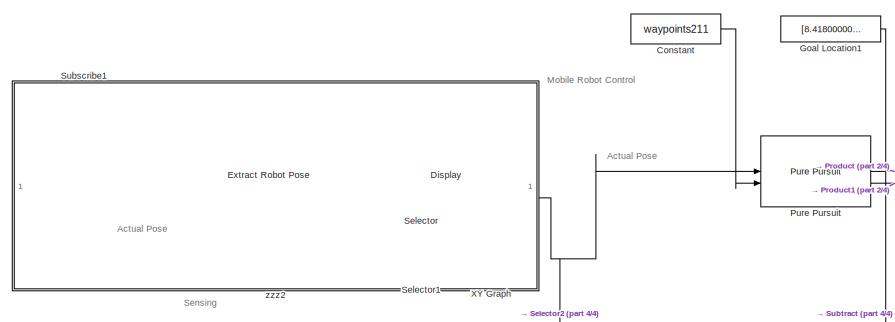
[diagram: root canvas - part 1/4, top center region]
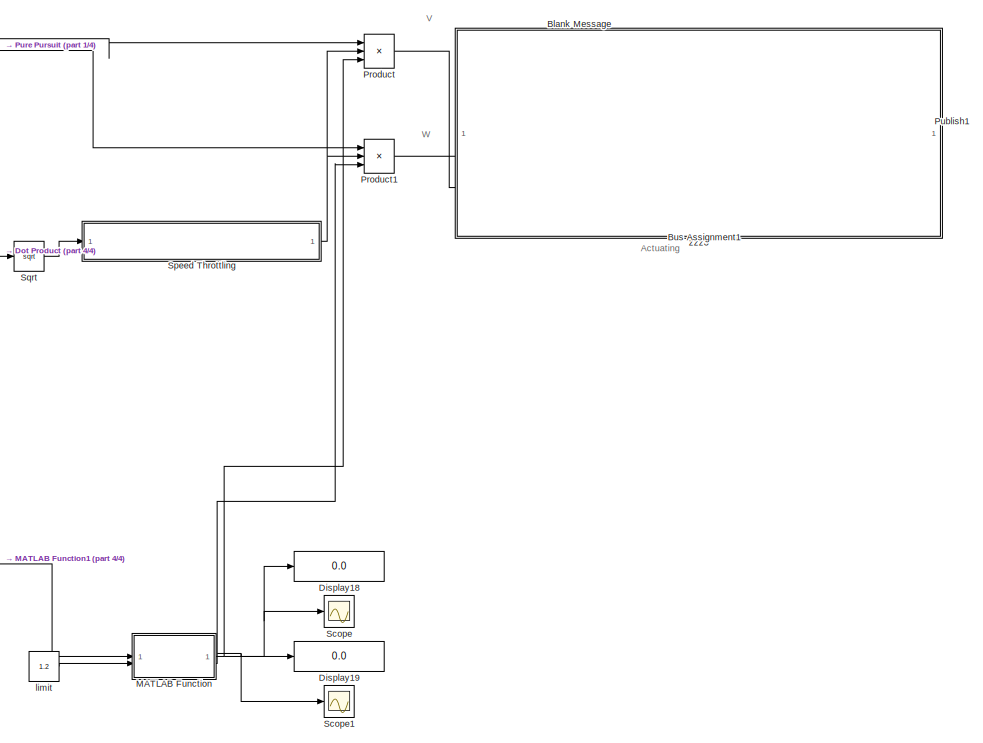
[diagram: root canvas - part 2/4, middle right region]
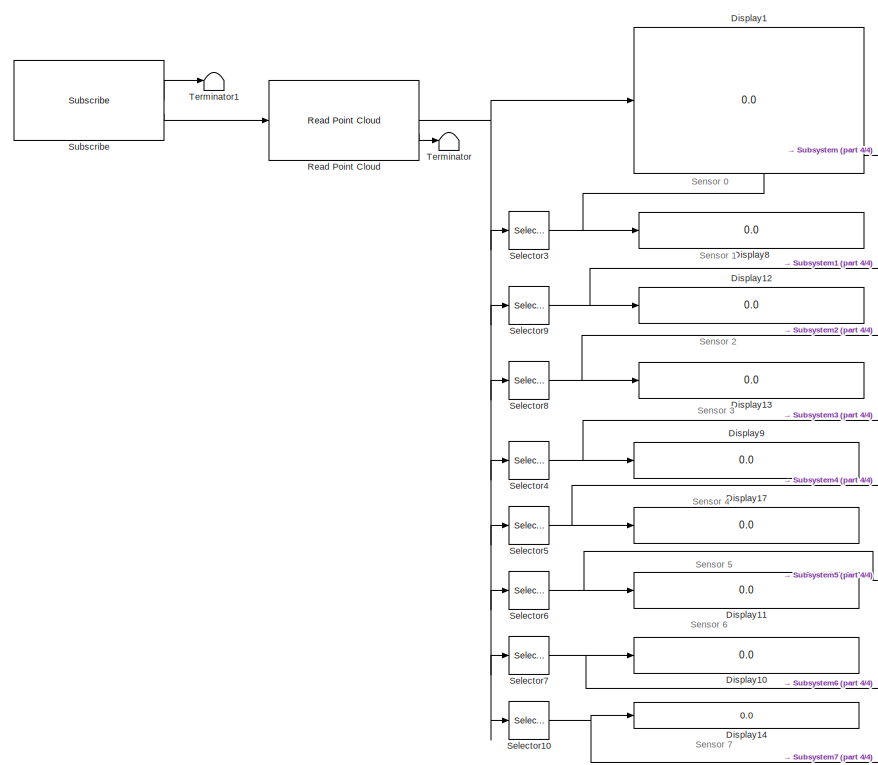
[diagram: root canvas - part 3/4, middle left region]
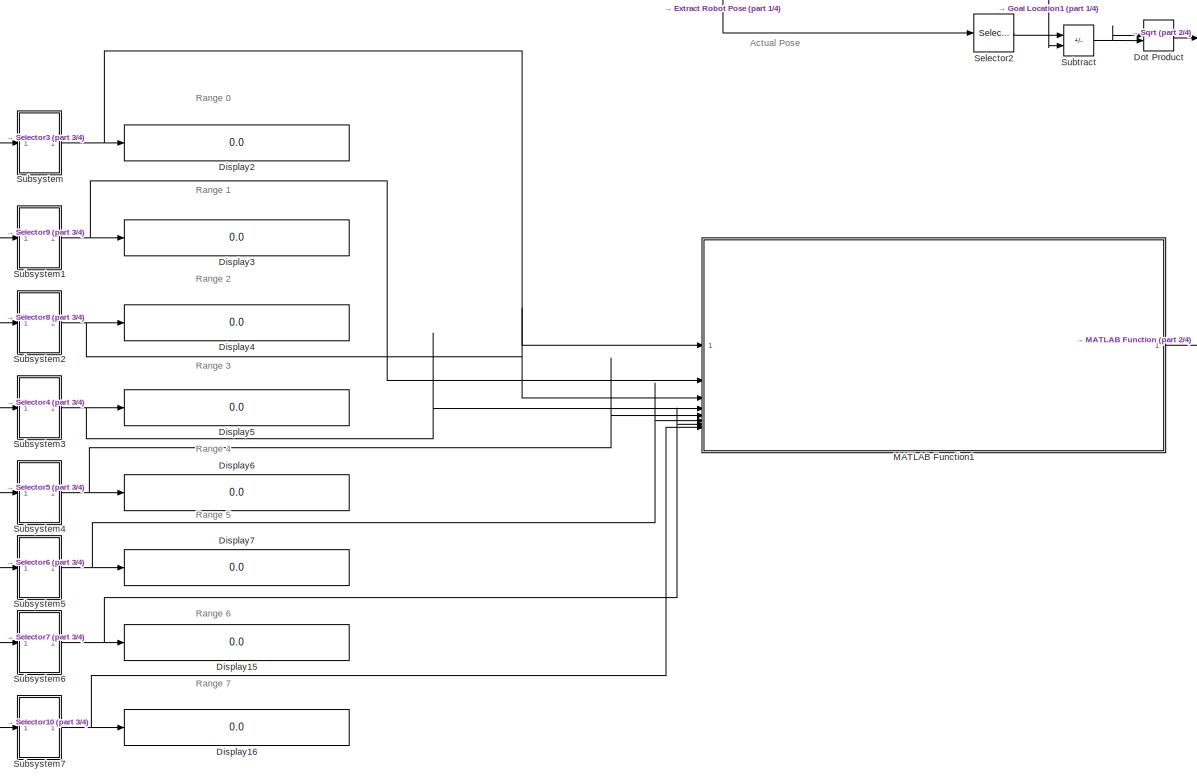
[diagram: root canvas - part 4/4, central region]
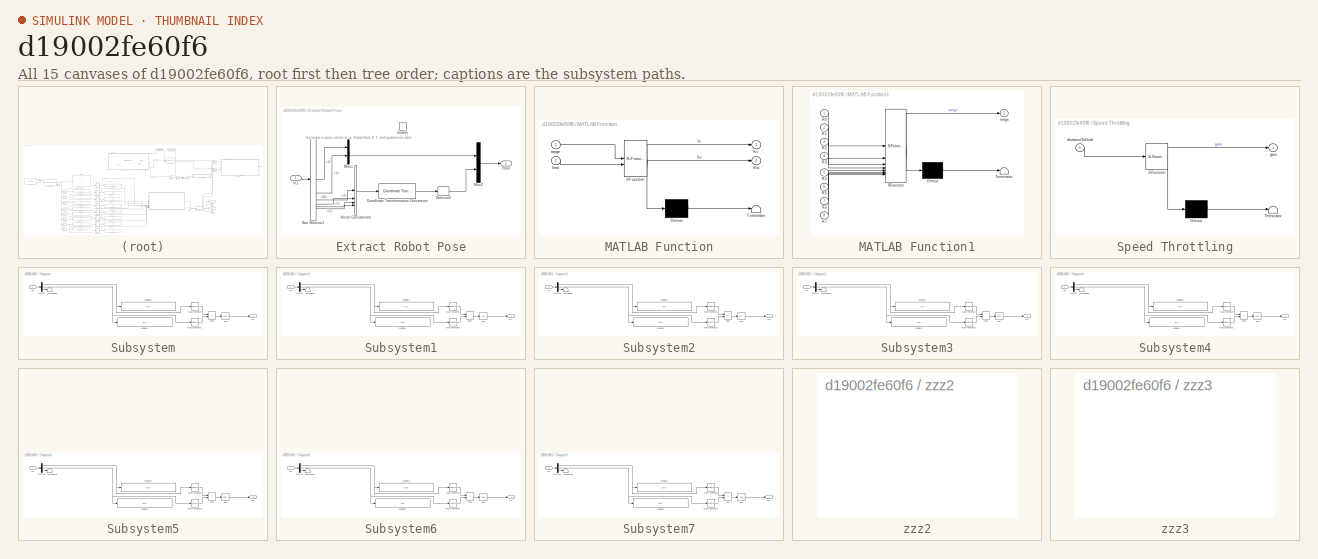
[diagram: thumbnail index - all 15 canvases of the model, root first then tree order]
MODEL slx_d19002fe60f6
KIND model
CONFIG AbsTol = auto
CONFIG EnableMultiTasking = off
CONFIG FixedStep = 0.02
CONFIG MaxStep = auto
CONFIG MinStep = auto
CONFIG RelTol = 1e-3
CONFIG SampleTimeConstraint = Unconstrained
CONFIG SolverName = ode3
CONFIG StartTime = 0.0
CONFIG StopTime = inf
WORKSPACE source: mxarray member
WORKSPACE Logfile_Data_Object: robotics.ros.BagSelection (value not decoded)
WORKSPACE Logfile_Path = '<userpath>\\Desktop\\camera2022-04-27-13-31-43.bag'
WORKSPACE Logfile_Playback_Duration = nan
WORKSPACE Logfile_Playback_Offset = nan
BLOCK [Reference] Blank Message  REF=robotlib/Blank Message
  SourceBlock = robotlib/Blank Message
  SourceType = ROS Blank Message
BLOCK [BusAssignment] Bus Assignment1
  AssignedSignals = Linear.X,Angular.Z
BLOCK [Constant] Constant
  Value = waypoints211
BLOCK [Display] Display
  Decimation = 1
BLOCK [Display] Display1
  Decimation = 1
BLOCK [Display] Display10
  Decimation = 1
BLOCK [Display] Display11
  Decimation = 1
BLOCK [Display] Display12
  Decimation = 1
BLOCK [Display] Display13
  Decimation = 1
BLOCK [Display] Display14
  Decimation = 1
BLOCK [Display] Display15
  Decimation = 1
BLOCK [Display] Display16
  Decimation = 1
BLOCK [Display] Display17
  Decimation = 1
BLOCK [Display] Display18
  Decimation = 1
BLOCK [Display] Display19
  Decimation = 1
BLOCK [Display] Display2
  Decimation = 1
BLOCK [Display] Display3
  Decimation = 1
BLOCK [Display] Display4
  Decimation = 1
BLOCK [Display] Display5
  Decimation = 1
BLOCK [Display] Display6
  Decimation = 1
BLOCK [Display] Display7
  Decimation = 1
BLOCK [Display] Display8
  Decimation = 1
BLOCK [Display] Display9
  Decimation = 1
BLOCK [DotProduct] Dot Product
  OutDataTypeStr = Inherit: Inherit via internal rule
BLOCK [SubSystem] Extract Robot Pose
BLOCK [BusSelector] Extract Robot Pose/Bus Selector1
  OutputSignals = Pose.Pose.Position.X,Pose.Pose.Position.Y,Pose.Pose.Orientation.W,Pose.Pose.Orientation.X,Pose.Pose.Orientation.Y,Pose.Pose.Orientation.Z
BLOCK [Reference] Extract Robot Pose/Coordinate Transformation Conversion  REF=robotcorelib/Coordinate Transformation Conversion
  SourceBlock = robotcorelib/Coordinate Transformation Conversion
  SourceType = robotics.slcore.internal.block.CoordinateTransformationConversion
BLOCK [EnablePort] Extract Robot Pose/Enable
BLOCK [Inport] Extract Robot Pose/In1
BLOCK [Mux] Extract Robot Pose/Mux1
  DisplayOption = bar
  Inputs = 2
BLOCK [Mux] Extract Robot Pose/Mux2
  DisplayOption = bar
  Inputs = 2
BLOCK [Outport] Extract Robot Pose/Pose
  VectorParamsAs1DForOutWhenUnconnected = off
BLOCK [Selector] Extract Robot Pose/Selector2
  IndexOptions = Index vector (dialog)
  Indices = 1
  InputPortWidth = 3
  OutputSizes = 1
BLOCK [Concatenate] Extract Robot Pose/Vector Concatenate
  NumInputs = 4
BLOCK [Constant] Goal Location1
  Value = [8.41800000000000	0]
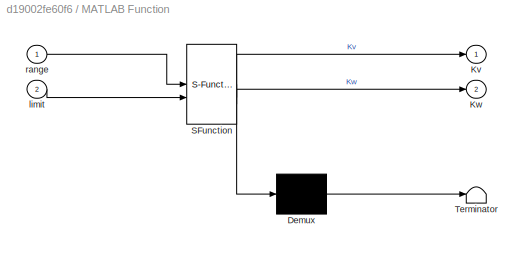
BLOCK [SubSystem] MATLAB Function
  ErrorFcn = Stateflow.Translate.translate
  PermitHierarchicalResolution = ExplicitOnly
  SFBlockType = MATLAB Function
  TreatAsAtomicUnit = on
BLOCK [Demux] MATLAB Function/ Demux 
  Outputs = 1
BLOCK [S-Function] MATLAB Function/ SFunction 
  EnableBusSupport = off
  FunctionName = sf_sfun
  PortCounts = [2 3]
  SFcnIsStateOwnerBlock = off
  SFunctionDeploymentMode = off
  Tag = Stateflow S-Function 2
BLOCK [Terminator] MATLAB Function/ Terminator 
BLOCK [Outport] MATLAB Function/Kv
BLOCK [Outport] MATLAB Function/Kw
  Port = 2
BLOCK [Inport] MATLAB Function/limit
  Port = 2
BLOCK [Inport] MATLAB Function/range
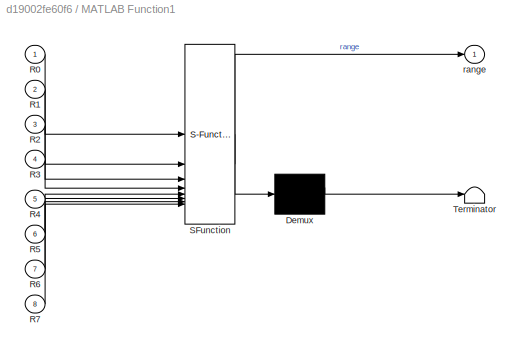
BLOCK [SubSystem] MATLAB Function1
  ErrorFcn = Stateflow.Translate.translate
  PermitHierarchicalResolution = ExplicitOnly
  SFBlockType = MATLAB Function
  TreatAsAtomicUnit = on
BLOCK [Demux] MATLAB Function1/ Demux 
  Outputs = 1
BLOCK [S-Function] MATLAB Function1/ SFunction 
  EnableBusSupport = off
  FunctionName = sf_sfun
  PortCounts = [8 2]
  SFcnIsStateOwnerBlock = off
  SFunctionDeploymentMode = off
  Tag = Stateflow S-Function 3
BLOCK [Terminator] MATLAB Function1/ Terminator 
BLOCK [Inport] MATLAB Function1/R0
BLOCK [Inport] MATLAB Function1/R1
  Port = 2
BLOCK [Inport] MATLAB Function1/R2
  Port = 3
BLOCK [Inport] MATLAB Function1/R3
  Port = 4
BLOCK [Inport] MATLAB Function1/R4
  Port = 5
BLOCK [Inport] MATLAB Function1/R5
  Port = 6
BLOCK [Inport] MATLAB Function1/R6
  Port = 7
BLOCK [Inport] MATLAB Function1/R7
  Port = 8
BLOCK [Outport] MATLAB Function1/range
BLOCK [Product] Product
  Inputs = 3
BLOCK [Product] Product1
  Inputs = 3
BLOCK [Reference] Publish1  REF=robotlib/Publish
  SourceBlock = robotlib/Publish
  SourceType = ROS Publish
BLOCK [Reference] Pure Pursuit  REF=robotalgslib/Pure Pursuit
  SourceBlock = robotalgslib/Pure Pursuit
  SourceType = nav.slalgs.internal.PurePursuit
BLOCK [Reference] Read Point Cloud  REF=robotlib/Read Point Cloud
  SourceBlock = robotlib/Read Point Cloud
  SourceType = ros.slros.internal.block.ReadPointCloud
BLOCK [Scope] Scope
  Floating = off
  NumInputPorts = 1
  ScopeSpecificationString = Simulink.scopes.TimeScopeBlockCfg('CurrentConfiguration', extmgr.ConfigurationSet(extmgr.Configuration('Core','General UI',true),extmgr.Configuration('Core','Source UI',true),extmgr.Configuration('Sources','WiredSimulink',true),extmgr.Configuration('Visuals','Time Domain',true,'SerializedDisplays',{struct('MinYLimReal','0.9','MaxYLimReal','1.1','YLabelReal','','MinYLimMag','0.9','MaxYLimMag','1.1'...<+1304ch>
BLOCK [Scope] Scope1
  Floating = off
  NumInputPorts = 1
  ScopeSpecificationString = Simulink.scopes.TimeScopeBlockCfg('CurrentConfiguration', extmgr.ConfigurationSet(extmgr.Configuration('Core','General UI',true),extmgr.Configuration('Core','Source UI',true),extmgr.Configuration('Sources','WiredSimulink',true,'DataLoggingVariableName','ScopeData1'),extmgr.Configuration('Visuals','Time Domain',true),extmgr.Configuration('Tools','Plot Navigation',true),extmgr.Configuration('Tools',...<+40ch>
BLOCK [Selector] Selector
  IndexOptions = Index vector (dialog)
  Indices = [1]
  InputPortWidth = 3
  OutputSizes = 1
BLOCK [Selector] Selector1
  IndexOptions = Index vector (dialog)
  Indices = [2]
  InputPortWidth = 3
  OutputSizes = 1
BLOCK [Selector] Selector10
  IndexOptions = Starting index (dialog),Starting index (dialog)
  Indices = 8,1
  InputPortWidth = 6
  NumberOfDimensions = 2
  OutputSizes = 1,3
BLOCK [Selector] Selector2
  IndexOptions = Index vector (dialog)
  Indices = [1 2]
  InputPortWidth = 3
  OutputSizes = 1
BLOCK [Selector] Selector3
  IndexOptions = Starting index (dialog),Starting index (dialog)
  Indices = 1,1
  InputPortWidth = 6
  NumberOfDimensions = 2
  OutputSizes = 1,3
BLOCK [Selector] Selector4
  IndexOptions = Starting index (dialog),Starting index (dialog)
  Indices = 4,1
  InputPortWidth = 6
  NumberOfDimensions = 2
  OutputSizes = 1,3
BLOCK [Selector] Selector5
  IndexOptions = Starting index (dialog),Starting index (dialog)
  Indices = 5,1
  InputPortWidth = 6
  NumberOfDimensions = 2
  OutputSizes = 1,3
BLOCK [Selector] Selector6
  IndexOptions = Starting index (dialog),Starting index (dialog)
  Indices = 6,1
  InputPortWidth = 6
  NumberOfDimensions = 2
  OutputSizes = 1,3
BLOCK [Selector] Selector7
  IndexOptions = Starting index (dialog),Starting index (dialog)
  Indices = 7,1
  InputPortWidth = 6
  NumberOfDimensions = 2
  OutputSizes = 1,3
BLOCK [Selector] Selector8
  IndexOptions = Starting index (dialog),Starting index (dialog)
  Indices = 3,1
  InputPortWidth = 6
  NumberOfDimensions = 2
  OutputSizes = 1,3
BLOCK [Selector] Selector9
  IndexOptions = Starting index (dialog),Starting index (dialog)
  Indices = 2,1
  InputPortWidth = 6
  NumberOfDimensions = 2
  OutputSizes = 1,3
BLOCK [SubSystem] Speed Throttling
  ErrorFcn = Stateflow.Translate.translate
  PermitHierarchicalResolution = ExplicitOnly
  SFBlockType = MATLAB Function
  TreatAsAtomicUnit = on
BLOCK [Demux] Speed Throttling/ Demux 
  Outputs = 1
BLOCK [S-Function] Speed Throttling/ SFunction 
  EnableBusSupport = off
  FunctionName = sf_sfun
  PortCounts = [1 2]
  SFcnIsStateOwnerBlock = off
  SFunctionDeploymentMode = off
  Tag = Stateflow S-Function 1
BLOCK [Terminator] Speed Throttling/ Terminator 
BLOCK [Inport] Speed Throttling/distanceToGoal
BLOCK [Outport] Speed Throttling/gain
BLOCK [Sqrt] Sqrt
BLOCK [Reference] Subscribe  REF=robotlib/Subscribe
  SourceBlock = robotlib/Subscribe
  SourceType = ROS Subscribe
BLOCK [Reference] Subscribe1  REF=robotlib/Subscribe
  SourceBlock = robotlib/Subscribe
  SourceType = ROS Subscribe
BLOCK [SubSystem] Subsystem
BLOCK [Sum] Subsystem/Add1
  IconShape = rectangular
BLOCK [Demux] Subsystem/Demux
  Outputs = 3
BLOCK [Display] Subsystem/Display2
  Decimation = 1
BLOCK [Display] Subsystem/Display3
  Decimation = 1
BLOCK [Inport] Subsystem/In1
BLOCK [Math] Subsystem/Math Function
  Operator = square
BLOCK [Math] Subsystem/Math Function1
  Operator = square
BLOCK [Outport] Subsystem/R0
BLOCK [Sqrt] Subsystem/Sqrt
BLOCK [Terminator] Subsystem/Terminator
BLOCK [SubSystem] Subsystem1
BLOCK [Sum] Subsystem1/Add1
  IconShape = rectangular
BLOCK [Demux] Subsystem1/Demux
  Outputs = 3
BLOCK [Display] Subsystem1/Display2
  Decimation = 1
BLOCK [Display] Subsystem1/Display3
  Decimation = 1
BLOCK [Inport] Subsystem1/In1
BLOCK [Math] Subsystem1/Math Function
  Operator = square
BLOCK [Math] Subsystem1/Math Function1
  Operator = square
BLOCK [Outport] Subsystem1/R1
BLOCK [Sqrt] Subsystem1/Sqrt
BLOCK [Terminator] Subsystem1/Terminator
BLOCK [SubSystem] Subsystem2
BLOCK [Sum] Subsystem2/Add1
  IconShape = rectangular
BLOCK [Demux] Subsystem2/Demux
  Outputs = 3
BLOCK [Display] Subsystem2/Display2
  Decimation = 1
BLOCK [Display] Subsystem2/Display3
  Decimation = 1
BLOCK [Inport] Subsystem2/In1
BLOCK [Math] Subsystem2/Math Function
  Operator = square
BLOCK [Math] Subsystem2/Math Function1
  Operator = square
BLOCK [Outport] Subsystem2/R2
BLOCK [Sqrt] Subsystem2/Sqrt
BLOCK [Terminator] Subsystem2/Terminator
BLOCK [SubSystem] Subsystem3
BLOCK [Sum] Subsystem3/Add1
  IconShape = rectangular
BLOCK [Demux] Subsystem3/Demux
  Outputs = 3
BLOCK [Display] Subsystem3/Display2
  Decimation = 1
BLOCK [Display] Subsystem3/Display3
  Decimation = 1
BLOCK [Inport] Subsystem3/In1
BLOCK [Math] Subsystem3/Math Function
  Operator = square
BLOCK [Math] Subsystem3/Math Function1
  Operator = square
BLOCK [Outport] Subsystem3/R3
BLOCK [Sqrt] Subsystem3/Sqrt
BLOCK [Terminator] Subsystem3/Terminator
BLOCK [SubSystem] Subsystem4
BLOCK [Sum] Subsystem4/Add1
  IconShape = rectangular
BLOCK [Demux] Subsystem4/Demux
  Outputs = 3
BLOCK [Display] Subsystem4/Display2
  Decimation = 1
BLOCK [Display] Subsystem4/Display3
  Decimation = 1
BLOCK [Inport] Subsystem4/In1
BLOCK [Math] Subsystem4/Math Function
  Operator = square
BLOCK [Math] Subsystem4/Math Function1
  Operator = square
BLOCK [Outport] Subsystem4/R4
BLOCK [Sqrt] Subsystem4/Sqrt
BLOCK [Terminator] Subsystem4/Terminator
BLOCK [SubSystem] Subsystem5
BLOCK [Sum] Subsystem5/Add1
  IconShape = rectangular
BLOCK [Demux] Subsystem5/Demux
  Outputs = 3
BLOCK [Display] Subsystem5/Display2
  Decimation = 1
BLOCK [Display] Subsystem5/Display3
  Decimation = 1
BLOCK [Inport] Subsystem5/In1
BLOCK [Math] Subsystem5/Math Function
  Operator = square
BLOCK [Math] Subsystem5/Math Function1
  Operator = square
BLOCK [Outport] Subsystem5/R5
BLOCK [Sqrt] Subsystem5/Sqrt
BLOCK [Terminator] Subsystem5/Terminator
BLOCK [SubSystem] Subsystem6
BLOCK [Sum] Subsystem6/Add1
  IconShape = rectangular
BLOCK [Demux] Subsystem6/Demux
  Outputs = 3
BLOCK [Display] Subsystem6/Display2
  Decimation = 1
BLOCK [Display] Subsystem6/Display3
  Decimation = 1
BLOCK [Inport] Subsystem6/In1
BLOCK [Math] Subsystem6/Math Function
  Operator = square
BLOCK [Math] Subsystem6/Math Function1
  Operator = square
BLOCK [Outport] Subsystem6/R6
BLOCK [Sqrt] Subsystem6/Sqrt
BLOCK [Terminator] Subsystem6/Terminator
BLOCK [SubSystem] Subsystem7
BLOCK [Sum] Subsystem7/Add1
  IconShape = rectangular
BLOCK [Demux] Subsystem7/Demux
  Outputs = 3
BLOCK [Display] Subsystem7/Display2
  Decimation = 1
BLOCK [Display] Subsystem7/Display3
  Decimation = 1
BLOCK [Inport] Subsystem7/In1
BLOCK [Math] Subsystem7/Math Function
  Operator = square
BLOCK [Math] Subsystem7/Math Function1
  Operator = square
BLOCK [Outport] Subsystem7/R7
BLOCK [Sqrt] Subsystem7/Sqrt
BLOCK [Terminator] Subsystem7/Terminator
BLOCK [Sum] Subtract
  IconShape = rectangular
  Inputs = +-
BLOCK [Terminator] Terminator
BLOCK [Terminator] Terminator1
BLOCK [Record] XY Graph
  CompatibilityTag = XY
  FileSettingsInternal = {"entries":[{"content":{"excelSettings":{"content":{},"type":"Streamout.ExcelSettings"}},"type":"Streamout.FileSettingStorage","uuid":"6dcafb8c-c2e8-42d2-a393-42a68d2ab7a7"}],"packageUris":["http://schema.mathworks.com/mf0/streamout_blocks/R2020a"],"version":"1.0"}
  Layout = [1 1]
  SignalsInternal = {"entries":[{"content":{"signals":[{"content":{"blockPath":["pioneer_stop_obstacle/XY Graph"],"channel":[],"dimensions":[1],"domain":"pioneer_stop_obstacle/XY Graph","lineColor":"#a2142f","plots":[1],"port":1,"sid":[],"signalID":34,"signalName":"XY Graph:1"},"type":"RecordBlkView.Signal","uuid":"3db1dab7-281e-4972-95fd-2f43a7dd423c"},{"content":{"blockPath":["pioneer_stop_obstacle/XY Graph"],"chan...<+413ch>
  VisualizationBindings = {"xyplotplugin":{"info":[{"series":[{"bindingParametersList":[{"parameter":"X-Axis","signalID":34,"signalName":"XY Graph:1"},{"parameter":"Y-Axis","signalID":37,"signalName":"XY Graph:2"}],"seriesID":47604}],"subplotID":1}]}}
  st = -1
BLOCK [Constant] limit
  Value = 1.2
BLOCK [SubSystem] zzz2
  OpenFcn = % no-op
  TreatAsAtomicUnit = on
BLOCK [SubSystem] zzz3
  OpenFcn = % no-op
  TreatAsAtomicUnit = on
ANNOTATION (root): Range 0
ANNOTATION (root): Range 1
ANNOTATION (root): Range 2
ANNOTATION (root): Range 3
ANNOTATION (root): Range 4
ANNOTATION (root): Range 5
ANNOTATION (root): Range 6
ANNOTATION (root): Range 7
ANNOTATION (root): Sensor 0
ANNOTATION (root): Sensor 1
ANNOTATION (root): Sensor 2
ANNOTATION (root): Sensor 3
ANNOTATION (root): Sensor 4
ANNOTATION (root): Sensor 5
ANNOTATION (root): Sensor 6
ANNOTATION (root): Sensor 7
ANNOTATION (root): Actual Pose
ANNOTATION (root): Actuating
ANNOTATION (root): Sensing
ANNOTATION (root): V
ANNOTATION (root): W
ANNOTATION (root): Mobile Robot Control
ANNOTATION Extract Robot Pose: Generate a pose vector (x, y, theta) from X, Y, and quaternion data
LINE Blank Message:1 -> Bus Assignment1:1
LINE Bus Assignment1:1 -> Publish1:1
LINE Constant:1 -> Pure Pursuit:2
LINE Dot Product:1 -> Sqrt:1
LINE Extract Robot Pose/Bus Selector1:1 -> Extract Robot Pose/Mux1:1
LINE Extract Robot Pose/Bus Selector1:2 -> Extract Robot Pose/Mux1:2
LINE Extract Robot Pose/Bus Selector1:3 -> Extract Robot Pose/Vector Concatenate:1
LINE Extract Robot Pose/Bus Selector1:4 -> Extract Robot Pose/Vector Concatenate:2
LINE Extract Robot Pose/Bus Selector1:5 -> Extract Robot Pose/Vector Concatenate:3
LINE Extract Robot Pose/Bus Selector1:6 -> Extract Robot Pose/Vector Concatenate:4
LINE Extract Robot Pose/Coordinate Transformation Conversion:1 -> Extract Robot Pose/Selector2:1
LINE Extract Robot Pose/In1:1 -> Extract Robot Pose/Bus Selector1:1
LINE Extract Robot Pose/Mux1:1 -> Extract Robot Pose/Mux2:1
LINE Extract Robot Pose/Mux2:1 -> Extract Robot Pose/Pose:1
LINE Extract Robot Pose/Selector2:1 -> Extract Robot Pose/Mux2:2
LINE Extract Robot Pose/Vector Concatenate:1 -> Extract Robot Pose/Coordinate Transformation Conversion:1
NET Extract Robot Pose:1 -> Display:1, Pure Pursuit:1, Selector1:1, Selector2:1, Selector:1
LINE Goal Location1:1 -> Subtract:2
LINE MATLAB Function1:1 -> MATLAB Function:1
NET MATLAB Function:1 -> Display18:1, Product:3, Scope:1
NET MATLAB Function:2 -> Display19:1, Product1:3, Scope1:1
LINE Product1:1 -> Bus Assignment1:3
LINE Product:1 -> Bus Assignment1:2
LINE Pure Pursuit:1 -> Product:1
LINE Pure Pursuit:2 -> Product1:1
NET Read Point Cloud:1 -> Display1:1, Selector10:1, Selector3:1, Selector4:1, Selector5:1, Selector6:1, Selector7:1, Selector8:1, Selector9:1
LINE Read Point Cloud:2 -> Terminator:1
NET Selector10:1 -> Display14:1, Subsystem7:1
LINE Selector1:1 -> XY Graph:2
LINE Selector2:1 -> Subtract:1
NET Selector3:1 -> Display8:1, Subsystem:1
NET Selector4:1 -> Display9:1, Subsystem3:1
NET Selector5:1 -> Display17:1, Subsystem4:1
NET Selector6:1 -> Display11:1, Subsystem5:1
NET Selector7:1 -> Display10:1, Subsystem6:1
NET Selector8:1 -> Display13:1, Subsystem2:1
NET Selector9:1 -> Display12:1, Subsystem1:1
LINE Selector:1 -> XY Graph:1
NET Speed Throttling:1 -> Product1:2, Product:2
LINE Sqrt:1 -> Speed Throttling:1
LINE Subscribe1:1 -> Extract Robot Pose:enable
LINE Subscribe1:2 -> Extract Robot Pose:1
LINE Subscribe:1 -> Terminator1:1
LINE Subscribe:2 -> Read Point Cloud:1
LINE Subsystem/Add1:1 -> Subsystem/Sqrt:1
NET Subsystem/Demux:1 -> Subsystem/Display2:1, Subsystem/Math Function:1
NET Subsystem/Demux:2 -> Subsystem/Display3:1, Subsystem/Math Function1:1
LINE Subsystem/Demux:3 -> Subsystem/Terminator:1
LINE Subsystem/In1:1 -> Subsystem/Demux:1
LINE Subsystem/Math Function1:1 -> Subsystem/Add1:2
LINE Subsystem/Math Function:1 -> Subsystem/Add1:1
LINE Subsystem/Sqrt:1 -> Subsystem/R0:1
LINE Subsystem1/Add1:1 -> Subsystem1/Sqrt:1
NET Subsystem1/Demux:1 -> Subsystem1/Display2:1, Subsystem1/Math Function:1
NET Subsystem1/Demux:2 -> Subsystem1/Display3:1, Subsystem1/Math Function1:1
LINE Subsystem1/Demux:3 -> Subsystem1/Terminator:1
LINE Subsystem1/In1:1 -> Subsystem1/Demux:1
LINE Subsystem1/Math Function1:1 -> Subsystem1/Add1:2
LINE Subsystem1/Math Function:1 -> Subsystem1/Add1:1
LINE Subsystem1/Sqrt:1 -> Subsystem1/R1:1
NET Subsystem1:1 -> Display3:1, MATLAB Function1:2
LINE Subsystem2/Add1:1 -> Subsystem2/Sqrt:1
NET Subsystem2/Demux:1 -> Subsystem2/Display2:1, Subsystem2/Math Function:1
NET Subsystem2/Demux:2 -> Subsystem2/Display3:1, Subsystem2/Math Function1:1
LINE Subsystem2/Demux:3 -> Subsystem2/Terminator:1
LINE Subsystem2/In1:1 -> Subsystem2/Demux:1
LINE Subsystem2/Math Function1:1 -> Subsystem2/Add1:2
LINE Subsystem2/Math Function:1 -> Subsystem2/Add1:1
LINE Subsystem2/Sqrt:1 -> Subsystem2/R2:1
NET Subsystem2:1 -> Display4:1, MATLAB Function1:3
LINE Subsystem3/Add1:1 -> Subsystem3/Sqrt:1
NET Subsystem3/Demux:1 -> Subsystem3/Display2:1, Subsystem3/Math Function:1
NET Subsystem3/Demux:2 -> Subsystem3/Display3:1, Subsystem3/Math Function1:1
LINE Subsystem3/Demux:3 -> Subsystem3/Terminator:1
LINE Subsystem3/In1:1 -> Subsystem3/Demux:1
LINE Subsystem3/Math Function1:1 -> Subsystem3/Add1:2
LINE Subsystem3/Math Function:1 -> Subsystem3/Add1:1
LINE Subsystem3/Sqrt:1 -> Subsystem3/R3:1
NET Subsystem3:1 -> Display5:1, MATLAB Function1:4
LINE Subsystem4/Add1:1 -> Subsystem4/Sqrt:1
NET Subsystem4/Demux:1 -> Subsystem4/Display2:1, Subsystem4/Math Function:1
NET Subsystem4/Demux:2 -> Subsystem4/Display3:1, Subsystem4/Math Function1:1
LINE Subsystem4/Demux:3 -> Subsystem4/Terminator:1
LINE Subsystem4/In1:1 -> Subsystem4/Demux:1
LINE Subsystem4/Math Function1:1 -> Subsystem4/Add1:2
LINE Subsystem4/Math Function:1 -> Subsystem4/Add1:1
LINE Subsystem4/Sqrt:1 -> Subsystem4/R4:1
NET Subsystem4:1 -> Display6:1, MATLAB Function1:5
LINE Subsystem5/Add1:1 -> Subsystem5/Sqrt:1
NET Subsystem5/Demux:1 -> Subsystem5/Display2:1, Subsystem5/Math Function:1
NET Subsystem5/Demux:2 -> Subsystem5/Display3:1, Subsystem5/Math Function1:1
LINE Subsystem5/Demux:3 -> Subsystem5/Terminator:1
LINE Subsystem5/In1:1 -> Subsystem5/Demux:1
LINE Subsystem5/Math Function1:1 -> Subsystem5/Add1:2
LINE Subsystem5/Math Function:1 -> Subsystem5/Add1:1
LINE Subsystem5/Sqrt:1 -> Subsystem5/R5:1
NET Subsystem5:1 -> Display7:1, MATLAB Function1:6
LINE Subsystem6/Add1:1 -> Subsystem6/Sqrt:1
NET Subsystem6/Demux:1 -> Subsystem6/Display2:1, Subsystem6/Math Function:1
NET Subsystem6/Demux:2 -> Subsystem6/Display3:1, Subsystem6/Math Function1:1
LINE Subsystem6/Demux:3 -> Subsystem6/Terminator:1
LINE Subsystem6/In1:1 -> Subsystem6/Demux:1
LINE Subsystem6/Math Function1:1 -> Subsystem6/Add1:2
LINE Subsystem6/Math Function:1 -> Subsystem6/Add1:1
LINE Subsystem6/Sqrt:1 -> Subsystem6/R6:1
NET Subsystem6:1 -> Display15:1, MATLAB Function1:7
LINE Subsystem7/Add1:1 -> Subsystem7/Sqrt:1
NET Subsystem7/Demux:1 -> Subsystem7/Display2:1, Subsystem7/Math Function:1
NET Subsystem7/Demux:2 -> Subsystem7/Display3:1, Subsystem7/Math Function1:1
LINE Subsystem7/Demux:3 -> Subsystem7/Terminator:1
LINE Subsystem7/In1:1 -> Subsystem7/Demux:1
LINE Subsystem7/Math Function1:1 -> Subsystem7/Add1:2
LINE Subsystem7/Math Function:1 -> Subsystem7/Add1:1
LINE Subsystem7/Sqrt:1 -> Subsystem7/R7:1
NET Subsystem7:1 -> Display16:1, MATLAB Function1:8
NET Subsystem:1 -> Display2:1, MATLAB Function1:1
NET Subtract:1 -> Dot Product:1, Dot Product:2
LINE limit:1 -> MATLAB Function:2
note: NET lines group one-source signal fan-out (src -> all destinations, sorted); 1:1 wires keep LINE
CHART Speed Throttling states=1 transitions=1
  STATE_LABEL 'eML_blk_kernel()'
  STATE_LABEL 'SCRIPT:\nfunction gain  = slowDownNearGoal(distanceToGoal)\n%%slowDownNearGoal gradually slows the robot when it reaches a goal location.\n\n%continue to move at the normal angular and linear velocity\ngain = 1;\n\n%assume that the robot is away from goal\n%awayFromGoal = 1;\n\n%threshold to determine if the robot has reached the goal\natGoalThreshold = 0.5;\nslowThreshold = 1;\n\n%if the robot is within range ...<+310ch>'
CHART MATLAB Function states=1 transitions=1
  STATE_LABEL 'eML_blk_kernel()'
  STATE_LABEL 'SCRIPT:\n %function [kv,kw] = stopRobot(range,limit)\n %kv=nan;% for the case if the both conditions are false\n %kw=nan;\n %L=limit; %=0.8;% Limit for obstacle\n %t=0;\n %while t=<32\n  %   k=(range(4)<L)||(range(5)<L)||(range(6)<L);\n  %      if k==false  \n  %           kv=1;\n  %           kw=1;\n  %       else \n  %           kv=0;\n  %           kw=0;         \n  %       end\n  %       t=t+1;\n %end\n \n\n\nfun...<+212ch>'
CHART MATLAB Function1 states=1 transitions=1
  STATE_LABEL 'eML_blk_kernel()'
  STATE_LABEL 'SCRIPT:\nfunction range = sonarRanges(R0,R1,R2,R3,R4,R5,R6,R7)\nrange = [R0 R1 R2 R3 R4 R5 R6 R7];\nend\n'
CHART  states=0 transitions=0
CHART  states=0 transitions=0
CHART  states=0 transitions=0
